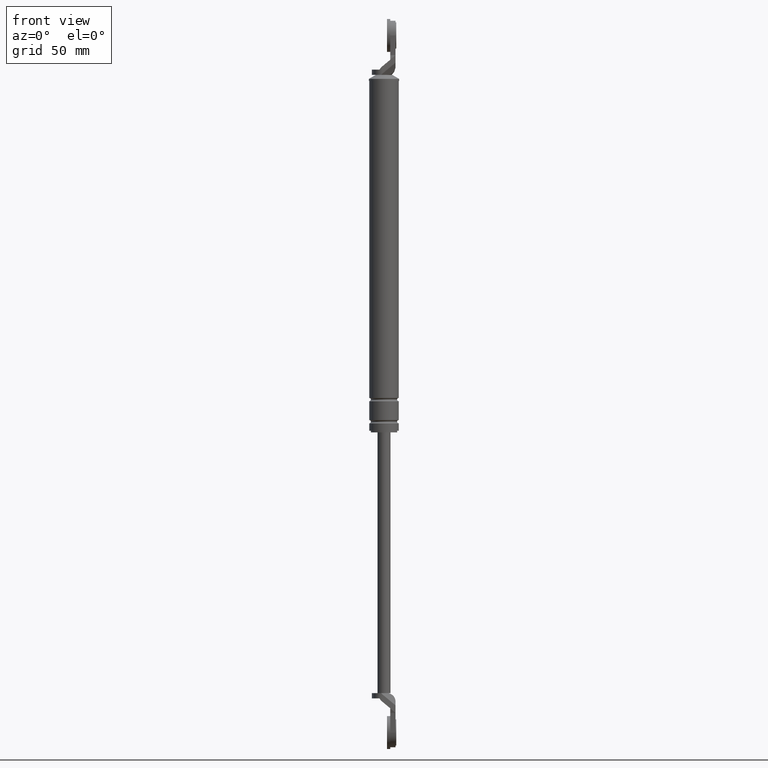
[diagram: clean part render]
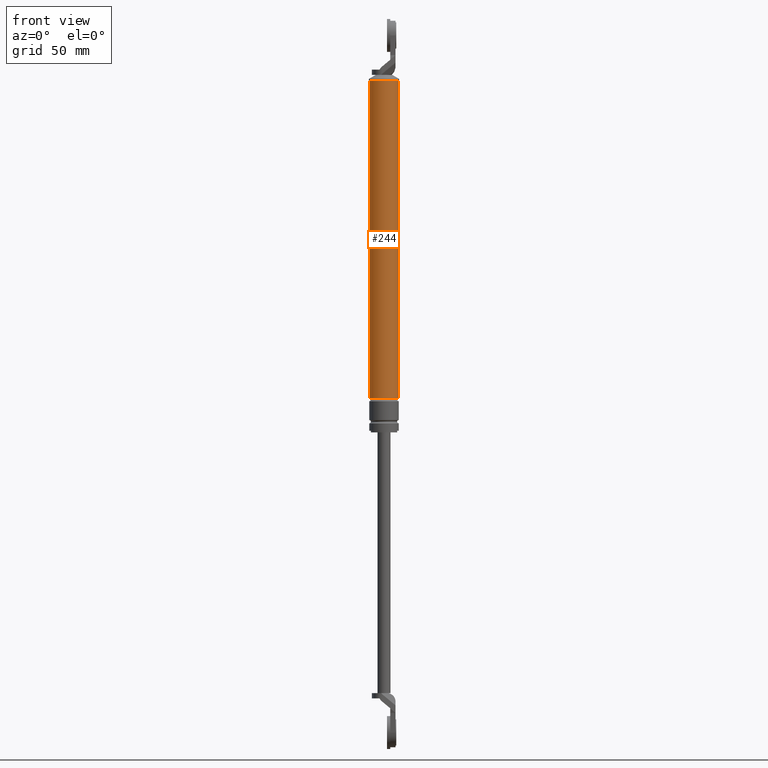
[diagram: same view with one face highlighted and labeled with its STEP entity id]
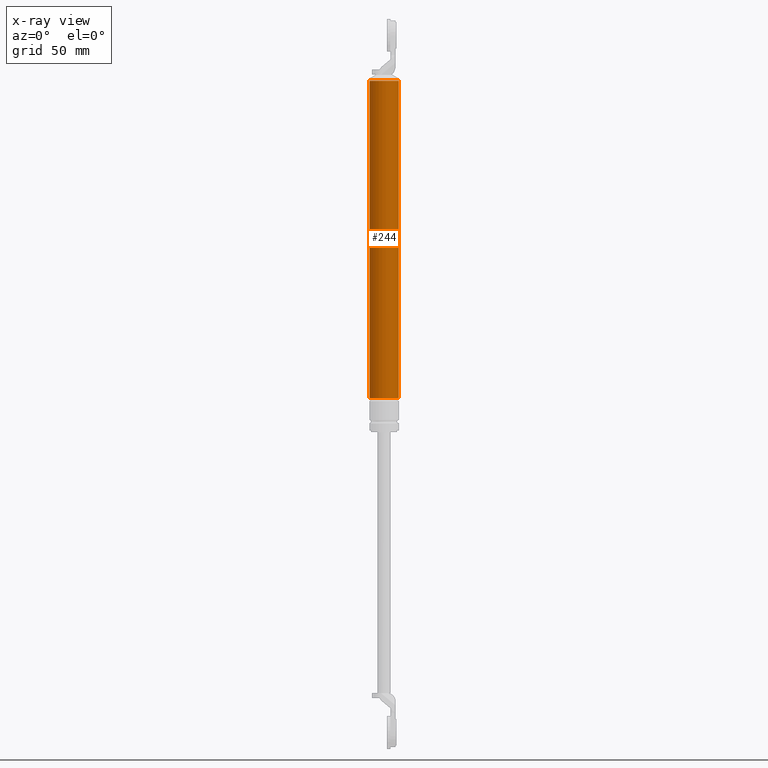
[diagram: x-ray of the same camera — body ghosted, the highlighted face saturated]
A machine part, front view. The second image highlights one B-rep face of the part: STEP entity #244.
The next image is the same camera in x-ray: the body ghosted, the highlighted face saturated — about 0% of this face is hidden behind the body in this view.
In plain terms, the highlighted cylindrical surface (edge-blend (fillet) strip) has radius 9 mm, axis along (0, 0, 1).
Its self-contained STEP definition (entity closure, byte-faithful):
#244=ADVANCED_FACE('',(#695),#694,.T.);
#694=CYLINDRICAL_SURFACE('',#1407,9.00000000000E+000);
#695=FACE_OUTER_BOUND('',#1408,.T.);
#1404=CARTESIAN_POINT('',(0.00000000000E+000,3.58204186421E-014,0.00000000000E+000));
#1405=DIRECTION('',(-0.00000000000E+000,-0.00000000000E+000,1.00000000000E+000));
#1406=DIRECTION('',(1.00000000000E+000,-0.00000000000E+000,-0.00000000000E+000));
#1407=AXIS2_PLACEMENT_3D('',#1404,#1405,#1406);
#1408=EDGE_LOOP('',(#1954,#1955,#1956,#1957));
#1954=ORIENTED_EDGE('',*,*,#2262,.F.);
#1955=ORIENTED_EDGE('',*,*,#2259,.T.);
#1956=ORIENTED_EDGE('',*,*,#2237,.F.);
#1957=ORIENTED_EDGE('',*,*,#2261,.F.);
#2237=EDGE_CURVE('',#2882,#2881,#2889,.T.);
#2259=EDGE_CURVE('',#3032,#2881,#3033,.T.);
#2261=EDGE_CURVE('',#3039,#2882,#3046,.T.);
#2262=EDGE_CURVE('',#3032,#3039,#3052,.T.);
#2881=VERTEX_POINT('',#3998);
#2882=VERTEX_POINT('',#3999);
#2889=CIRCLE('',#4007,9.00000000000E+000);
#3032=VERTEX_POINT('',#4093);
#3033=(BOUNDED_CURVE() B_SPLINE_CURVE(1,(#4094,#4095),.UNSPECIFIED.,.F.,.F.) B_SPLINE_CURVE_WITH_KNOTS((2,2),(4.68823252246E-002,9.53117674498E-001),.UNSPECIFIED.) CURVE() GEOMETRIC_REPRESENTATION_ITEM() RATIONAL_B_SPLINE_CURVE((1.00000000000E+000,1.00000000000E+000)) REPRESENTATION_ITEM('') );
#3039=VERTEX_POINT('',#4096);
#3046=(BOUNDED_CURVE() B_SPLINE_CURVE(1,(#4101,#4102),.UNSPECIFIED.,.F.,.F.) B_SPLINE_CURVE_WITH_KNOTS((2,2),(4.68823253633E-002,9.53117674637E-001),.UNSPECIFIED.) CURVE() GEOMETRIC_REPRESENTATION_ITEM() RATIONAL_B_SPLINE_CURVE((7.50000000000E-001,7.50000000000E-001)) REPRESENTATION_ITEM('') );
#3052=CIRCLE('',#4106,9.00000000000E+000);
#3998=CARTESIAN_POINT('',(9.00000000000E+000,3.58204186421E-014,8.52999850000E+001));
#3999=CARTESIAN_POINT('',(-9.00000000000E+000,3.61192557345E-014,8.52999850000E+001));
#4004=CARTESIAN_POINT('',(0.00000000000E+000,3.58204186421E-014,8.52999850000E+001));
#4005=DIRECTION('',(0.00000000000E+000,0.00000000000E+000,1.00000000000E+000));
#4006=DIRECTION('',(1.00000000000E+000,-1.22460635382E-016,0.00000000000E+000));
#4007=AXIS2_PLACEMENT_3D('',#4004,#4005,#4006);
#4093=CARTESIAN_POINT('',(9.00000000000E+000,3.61192557345E-014,-1.08000015000E+002));
#4094=CARTESIAN_POINT('',(9.00000000000E+000,3.58204186421E-014,-1.08000015030E+002));
#4095=CARTESIAN_POINT('',(9.00000000000E+000,3.58204186421E-014,8.52999849704E+001));
#4096=CARTESIAN_POINT('',(-9.00000000000E+000,3.58204186421E-014,-1.08000015000E+002));
#4101=CARTESIAN_POINT('',(-9.00000000000E+000,3.52310773148E-014,-1.08000015000E+002));
#4102=CARTESIAN_POINT('',(-9.00000000000E+000,3.52310773148E-014,8.52999850000E+001));
#4103=CARTESIAN_POINT('',(0.00000000000E+000,3.58204186421E-014,-1.08000015000E+002));
#4104=DIRECTION('',(-0.00000000000E+000,0.00000000000E+000,-1.00000000000E+000));
#4105=DIRECTION('',(-1.00000000000E+000,-1.22460635382E-016,0.00000000000E+000));
#4106=AXIS2_PLACEMENT_3D('',#4103,#4104,#4105);